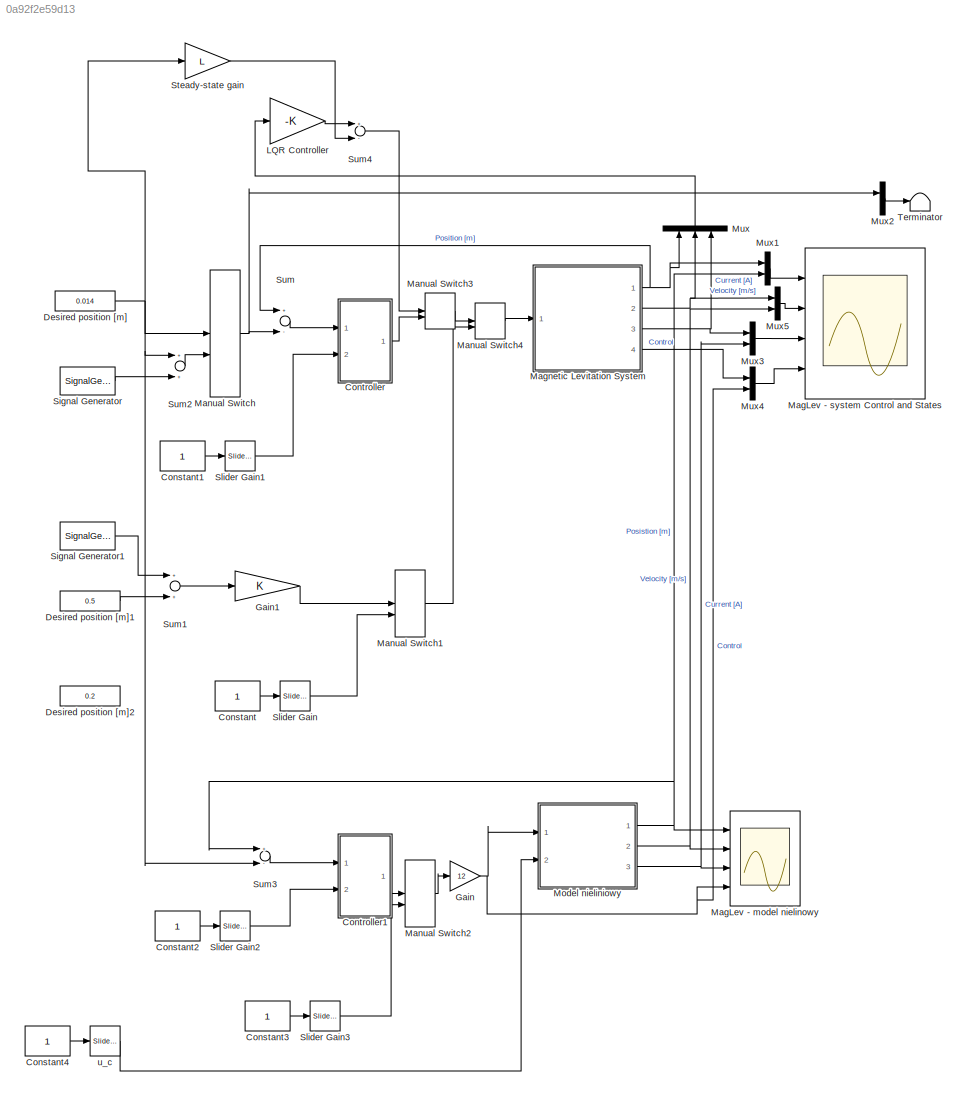
MODEL slx_0a92f2e59d13
KIND model
CONFIG AbsTol = 1e-6
CONFIG FixedStep = 0.001
CONFIG MaxStep = auto
CONFIG MinStep = auto
CONFIG PostLoadFcn = load ML_Sensor
CONFIG RelTol = 1e-3
CONFIG SampleTimeConstraint = Unconstrained
CONFIG Solver = ode5
CONFIG SolverMode = SingleTasking
CONFIG SolverName = ode5
CONFIG StartTime = 0.0
CONFIG StopTime = 1000
BLOCK [Constant] Constant
BLOCK [Constant] Constant1
BLOCK [Constant] Constant2
BLOCK [Constant] Constant3
BLOCK [Constant] Constant4
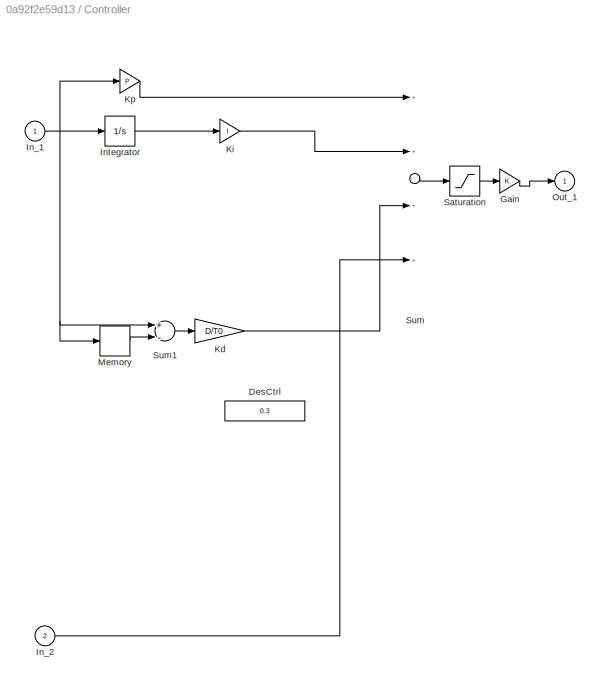
BLOCK [SubSystem] Controller
  Ports = [2, 1]
  RequestExecContextInheritance = off
BLOCK [Constant] Controller/DesCtrl
  Value = 0.3
BLOCK [Gain] Controller/Gain
BLOCK [Inport] Controller/In_1
  IconDisplay = Port number
BLOCK [Inport] Controller/In_2
  IconDisplay = Port number
  Port = 2
BLOCK [Integrator] Controller/Integrator
  InitialCondition = 0*4e-5
  LimitOutput = on
  LowerSaturationLimit = -1
  Ports = [1, 1]
  UpperSaturationLimit = 1
BLOCK [Gain] Controller/Kd
  Gain = D/T0
BLOCK [Gain] Controller/Ki
  Gain = I
BLOCK [Gain] Controller/Kp
  Gain = P
BLOCK [Memory] Controller/Memory
BLOCK [Outport] Controller/Out_1
  IconDisplay = Port number
  InitialOutput = 0
BLOCK [Saturate] Controller/Saturation
  InputPortMap = u0
  LowerLimit = 0
  Ports = [1, 1]
  UpperLimit = 1
BLOCK [Sum] Controller/Sum
  Inputs = ++++
  Ports = [4, 1]
BLOCK [Sum] Controller/Sum1
  Inputs = +-
  Ports = [2, 1]
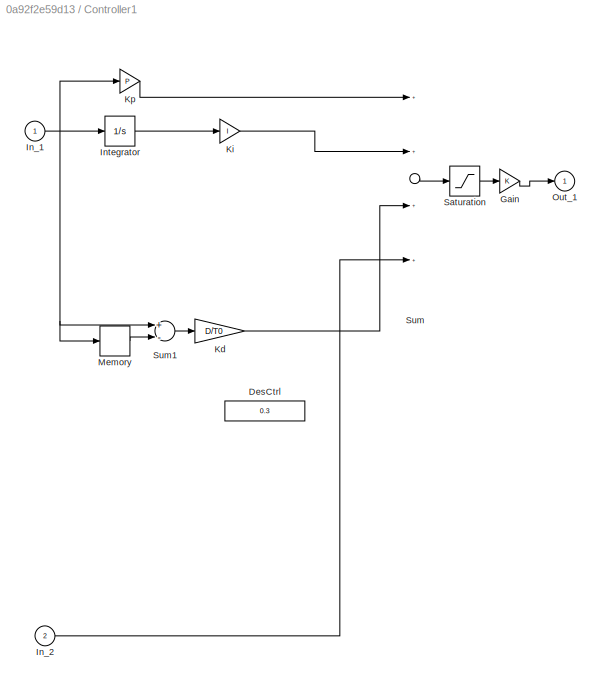
BLOCK [SubSystem] Controller1
  Ports = [2, 1]
  RequestExecContextInheritance = off
BLOCK [Constant] Controller1/DesCtrl
  Value = 0.3
BLOCK [Gain] Controller1/Gain
BLOCK [Inport] Controller1/In_1
  IconDisplay = Port number
BLOCK [Inport] Controller1/In_2
  IconDisplay = Port number
  Port = 2
BLOCK [Integrator] Controller1/Integrator
  InitialCondition = 0*4e-5
  LimitOutput = on
  LowerSaturationLimit = -1
  Ports = [1, 1]
  UpperSaturationLimit = 1
BLOCK [Gain] Controller1/Kd
  Gain = D/T0
BLOCK [Gain] Controller1/Ki
  Gain = I
BLOCK [Gain] Controller1/Kp
  Gain = P
BLOCK [Memory] Controller1/Memory
BLOCK [Outport] Controller1/Out_1
  IconDisplay = Port number
  InitialOutput = 0
BLOCK [Saturate] Controller1/Saturation
  InputPortMap = u0
  LowerLimit = 0
  Ports = [1, 1]
  UpperLimit = 1
BLOCK [Sum] Controller1/Sum
  Inputs = ++++
  Ports = [4, 1]
BLOCK [Sum] Controller1/Sum1
  Inputs = +-
  Ports = [2, 1]
BLOCK [Constant] Desired position [m]
  Value = 0.014
BLOCK [Constant] Desired position [m]1
  Value = 0.5
BLOCK [Constant] Desired position [m]2
  Value = 0.2
BLOCK [Gain] Gain
  Gain = 12
  OutDataTypeStr = Inherit: Inherit via internal rule
  ParamDataTypeStr = Inherit: Inherit via internal rule
  SaturateOnIntegerOverflow = off
BLOCK [Gain] Gain1
  OutDataTypeStr = Inherit: Inherit via internal rule
  ParamDataTypeStr = Inherit: Inherit via internal rule
  SaturateOnIntegerOverflow = off
BLOCK [Gain] LQR Controller
  Gain = -K
  Multiplication = Matrix(K*u)
  OutDataTypeStr = Inherit: Inherit via internal rule
  ParamDataTypeStr = Inherit: Inherit via internal rule
  SaturateOnIntegerOverflow = off
BLOCK [Scope] MagLev - model nielinowy
  DataFormat = StructureWithTime
  Floating = off
  LimitDataPoints = off
  MaxDataPoints = 10000
  NumInputPorts = 4
  Ports = [4]
  SampleTime = 0
  SaveName = ModelNieliniowy
  SaveToWorkspace = on
  TimeRange = 100
  YMax = 0.01475~0.009~0.08~0.25
  YMin = 0.01~-0.002~-0.005~0
BLOCK [Scope] MagLev - system Control and States
  DataFormat = StructureWithTime
  ExtModeLoggingTrig = on
  ExtModeUploadOption = log
  Floating = off
  LimitDataPoints = off
  MaxDataPoints = 10000
  NumInputPorts = 4
  Ports = [4]
  SampleTime = 0
  SaveName = ident
  SaveToWorkspace = on
  TimeRange = 20
  YMax = 2000~1000~3.5~12
  YMin = 0~-100~0.25~0
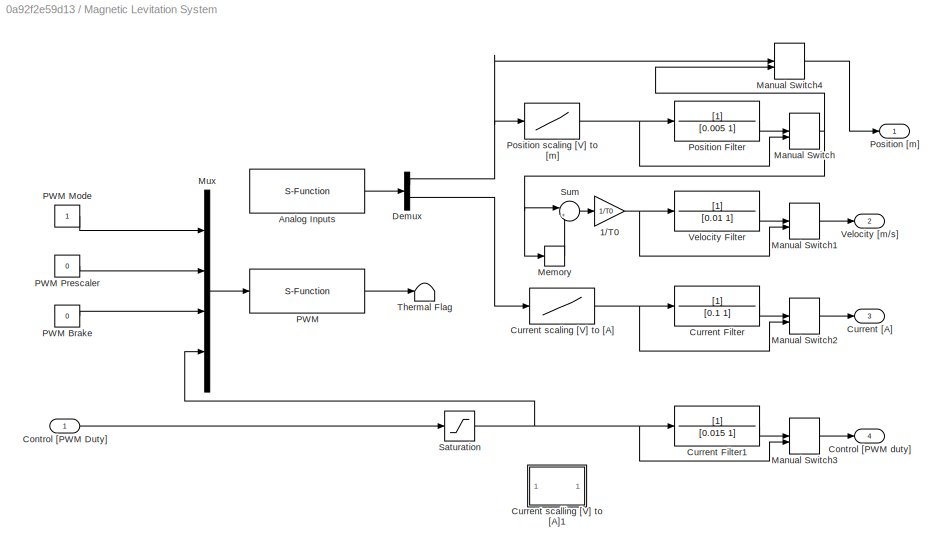
BLOCK [SubSystem] Magnetic Levitation System
  Ports = [1, 4]
  RequestExecContextInheritance = off
BLOCK [Gain] Magnetic Levitation System/1//T0
  Gain = 1/T0
BLOCK [S-Function] Magnetic Levitation System/Analog Inputs
  FunctionName = ML_AnalogInputs
  Parameters = BA, [4 2], [1 1], T0
  Ports = [0, 1]
BLOCK [Inport] Magnetic Levitation System/Control [PWM Duty]
  IconDisplay = Port number
BLOCK [Outport] Magnetic Levitation System/Control [PWM duty]
  IconDisplay = Port number
  Port = 4
BLOCK [TransferFcn] Magnetic Levitation System/Current Filter
  Denominator = [0.1 1]
BLOCK [TransferFcn] Magnetic Levitation System/Current Filter1
  Denominator = [0.015 1]
BLOCK [Outport] Magnetic Levitation System/Current [A]
  IconDisplay = Port number
  Port = 3
BLOCK [Lookup] Magnetic Levitation System/Current scaling [V] to [A] 
  InputValues = SensorData.Current_input
  Table = SensorData.Current_output
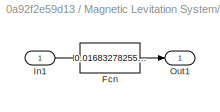
BLOCK [SubSystem] Magnetic Levitation System/Current scalling [V] to [A]1
  Commented = on
  Ports = [1, 1]
  RequestExecContextInheritance = off
BLOCK [Fcn] Magnetic Levitation System/Current scalling [V] to [A]1/Fcn
  Expr = 0.01683278255001*u(1)^2 +1.04509985660788*u(1) - 0.03168808638247
BLOCK [Inport] Magnetic Levitation System/Current scalling [V] to [A]1/In1
  IconDisplay = Port number
BLOCK [Outport] Magnetic Levitation System/Current scalling [V] to [A]1/Out1
  IconDisplay = Port number
BLOCK [Demux] Magnetic Levitation System/Demux
  Outputs = 2
  Ports = [1, 2]
BLOCK [ManualSwitch] Magnetic Levitation System/Manual Switch
  CurrentSetting = 0
BLOCK [ManualSwitch] Magnetic Levitation System/Manual Switch1
  CurrentSetting = 0
BLOCK [ManualSwitch] Magnetic Levitation System/Manual Switch2
  CurrentSetting = 0
BLOCK [ManualSwitch] Magnetic Levitation System/Manual Switch3
  CurrentSetting = 0
BLOCK [ManualSwitch] Magnetic Levitation System/Manual Switch4
  CurrentSetting = 0
BLOCK [Memory] Magnetic Levitation System/Memory
BLOCK [Mux] Magnetic Levitation System/Mux
  DisplayOption = bar
  Ports = [4, 1]
BLOCK [S-Function] Magnetic Levitation System/PWM
  FunctionName = ML_PWM
  Parameters = BA, T0
  Ports = [1, 1]
BLOCK [Constant] Magnetic Levitation System/PWM Brake
  Value = 0
BLOCK [Constant] Magnetic Levitation System/PWM Mode
BLOCK [Constant] Magnetic Levitation System/PWM Prescaler
  Value = 0
BLOCK [TransferFcn] Magnetic Levitation System/Position Filter
  Denominator = [0.005 1]
BLOCK [Outport] Magnetic Levitation System/Position [m]
  IconDisplay = Port number
BLOCK [Lookup] Magnetic Levitation System/Position scaling [V] to [m]
  InputValues = SensorData.Sensor_V(end:-1:1)
  Table = SensorData.Distance_m(end:-1:1)
BLOCK [Saturate] Magnetic Levitation System/Saturation
  InputPortMap = u0
  LowerLimit = 0
  Ports = [1, 1]
  UpperLimit = 1
BLOCK [Sum] Magnetic Levitation System/Sum
  IconShape = round
  Inputs = |+-
  Ports = [2, 1]
BLOCK [Terminator] Magnetic Levitation System/Thermal Flag
BLOCK [TransferFcn] Magnetic Levitation System/Velocity Filter
  Denominator = [0.01 1]
BLOCK [Outport] Magnetic Levitation System/Velocity [m//s]
  IconDisplay = Port number
  Port = 2
BLOCK [ManualSwitch] Manual Switch
BLOCK [ManualSwitch] Manual Switch1
  CurrentSetting = 0
BLOCK [ManualSwitch] Manual Switch2
BLOCK [ManualSwitch] Manual Switch3
  CurrentSetting = 0
BLOCK [ManualSwitch] Manual Switch4
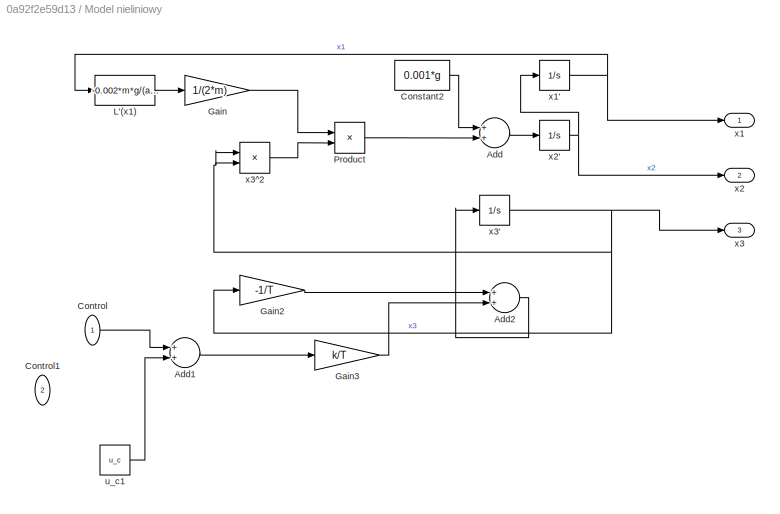
BLOCK [SubSystem] Model nieliniowy
  Ports = [2, 3]
  RequestExecContextInheritance = off
BLOCK [Sum] Model nieliniowy/Add
  InputSameDT = off
  OutDataTypeStr = Inherit: Inherit via internal rule
  Ports = [2, 1]
  SaturateOnIntegerOverflow = off
BLOCK [Sum] Model nieliniowy/Add1
  InputSameDT = off
  OutDataTypeStr = Inherit: Inherit via internal rule
  Ports = [2, 1]
  SaturateOnIntegerOverflow = off
BLOCK [Sum] Model nieliniowy/Add2
  InputSameDT = off
  OutDataTypeStr = Inherit: Inherit via internal rule
  Ports = [2, 1]
  SaturateOnIntegerOverflow = off
BLOCK [Constant] Model nieliniowy/Constant2
  Value = 0.001*g
BLOCK [Inport] Model nieliniowy/Control
  IconDisplay = Port number
BLOCK [Inport] Model nieliniowy/Control1
  IconDisplay = Port number
  Port = 2
BLOCK [Gain] Model nieliniowy/Gain
  Gain = 1/(2*m)
  OutDataTypeStr = Inherit: Inherit via internal rule
  ParamDataTypeStr = Inherit: Inherit via internal rule
  SaturateOnIntegerOverflow = off
BLOCK [Gain] Model nieliniowy/Gain2
  Gain = -1/T
  OutDataTypeStr = Inherit: Inherit via internal rule
  ParamDataTypeStr = Inherit: Inherit via internal rule
  SaturateOnIntegerOverflow = off
BLOCK [Gain] Model nieliniowy/Gain3
  Gain = k/T
  OutDataTypeStr = Inherit: Inherit via internal rule
  ParamDataTypeStr = Inherit: Inherit via internal rule
  SaturateOnIntegerOverflow = off
BLOCK [Fcn] Model nieliniowy/L'(x1)
  Expr = -0.002*m*g/(a*u+b)^2
BLOCK [Product] Model nieliniowy/Product
  InputSameDT = off
  OutDataTypeStr = Inherit: Inherit via internal rule
  Ports = [2, 1]
  RndMeth = Floor
  SaturateOnIntegerOverflow = off
BLOCK [Constant] Model nieliniowy/u_c1
  Value = u_c
BLOCK [Outport] Model nieliniowy/x1
  IconDisplay = Port number
BLOCK [Integrator] Model nieliniowy/x1'
  InitialCondition = x10
  LowerSaturationLimit = 0
  Ports = [1, 1]
  UpperSaturationLimit = 0.02
BLOCK [Outport] Model nieliniowy/x2
  IconDisplay = Port number
  Port = 2
BLOCK [Integrator] Model nieliniowy/x2'
  InitialCondition = x20
  Ports = [1, 1]
BLOCK [Outport] Model nieliniowy/x3
  IconDisplay = Port number
  Port = 3
BLOCK [Integrator] Model nieliniowy/x3'
  InitialCondition = x30
  Ports = [1, 1]
BLOCK [Product] Model nieliniowy/x3^2
  InputSameDT = off
  OutDataTypeStr = Inherit: Inherit via internal rule
  Ports = [2, 1]
  RndMeth = Floor
  SaturateOnIntegerOverflow = off
BLOCK [Mux] Mux
  DisplayOption = bar
  Inputs = 3
  Ports = [3, 1]
BLOCK [Mux] Mux1
  DisplayOption = bar
  Inputs = 2
  Ports = [2, 1]
BLOCK [Mux] Mux2
  DisplayOption = bar
  Inputs = 2
  Ports = [2, 1]
BLOCK [Mux] Mux3
  DisplayOption = bar
  Inputs = 2
  Ports = [2, 1]
BLOCK [Mux] Mux4
  DisplayOption = bar
  Inputs = 2
  Ports = [2, 1]
BLOCK [Mux] Mux5
  DisplayOption = bar
  Inputs = 2
  Ports = [2, 1]
BLOCK [SignalGenerator] Signal Generator
  Amplitude = 1e-3
  Frequency = 0.25
  Ports = [0, 1]
BLOCK [SignalGenerator] Signal Generator1
  Amplitude = 0.5
  Frequency = 200
  Ports = [0, 1]
  WaveForm = square
BLOCK [Reference] Slider Gain  REF=simulink/Math
Operations/Slider
Gain
  Ports = [1, 1]
  SourceBlock = simulink/Math\nOperations/Slider\nGain
  SourceType = Slider Gain
  gain = 0
  high = 1
  low = 0
BLOCK [Reference] Slider Gain1  REF=simulink/Math
Operations/Slider
Gain
  Ports = [1, 1]
  SourceBlock = simulink/Math\nOperations/Slider\nGain
  SourceType = Slider Gain
  gain = 0.52
  high = 1
  low = 0
BLOCK [Reference] Slider Gain2  REF=simulink/Math
Operations/Slider
Gain
  Ports = [1, 1]
  SourceBlock = simulink/Math\nOperations/Slider\nGain
  SourceType = Slider Gain
  gain = 0
  high = 1
  low = 0
BLOCK [Reference] Slider Gain3  REF=simulink/Math
Operations/Slider
Gain
  Ports = [1, 1]
  SourceBlock = simulink/Math\nOperations/Slider\nGain
  SourceType = Slider Gain
  gain = 0.41936
  high = 1
  low = 0
BLOCK [Gain] Steady-state gain
  Gain = L
  OutDataTypeStr = Inherit: Inherit via internal rule
  ParamDataTypeStr = Inherit: Inherit via internal rule
  SaturateOnIntegerOverflow = off
BLOCK [Sum] Sum
  Inputs = +-
  Ports = [2, 1]
BLOCK [Sum] Sum1
  Ports = [2, 1]
BLOCK [Sum] Sum2
  Ports = [2, 1]
BLOCK [Sum] Sum3
  Inputs = +-
  Ports = [2, 1]
BLOCK [Sum] Sum4
  Inputs = +-
  Ports = [2, 1]
BLOCK [Terminator] Terminator
BLOCK [Reference] u_c  REF=simulink/Math
Operations/Slider
Gain
  Ports = [1, 1]
  SourceBlock = simulink/Math\nOperations/Slider\nGain
  SourceType = Slider Gain
  gain = -0.096774
  high = 1
  low = -1
LINE Constant1:1 -> Slider Gain1:1
LINE Constant2:1 -> Slider Gain2:1
LINE Constant3:1 -> Slider Gain3:1
LINE Constant4:1 -> u_c:1
LINE Constant:1 -> Slider Gain:1
LINE Controller/Gain:1 -> Controller/Out_1:1
NET Controller/In_1:1 -> Controller/Integrator:1, Controller/Kp:1, Controller/Memory:1, Controller/Sum1:1
LINE Controller/In_2:1 -> Controller/Sum:4
LINE Controller/Integrator:1 -> Controller/Ki:1
LINE Controller/Kd:1 -> Controller/Sum:3
LINE Controller/Ki:1 -> Controller/Sum:2
LINE Controller/Kp:1 -> Controller/Sum:1
LINE Controller/Memory:1 -> Controller/Sum1:2
LINE Controller/Saturation:1 -> Controller/Gain:1
LINE Controller/Sum1:1 -> Controller/Kd:1
LINE Controller/Sum:1 -> Controller/Saturation:1
LINE Controller1/Gain:1 -> Controller1/Out_1:1
NET Controller1/In_1:1 -> Controller1/Integrator:1, Controller1/Kp:1, Controller1/Memory:1, Controller1/Sum1:1
LINE Controller1/In_2:1 -> Controller1/Sum:4
LINE Controller1/Integrator:1 -> Controller1/Ki:1
LINE Controller1/Kd:1 -> Controller1/Sum:3
LINE Controller1/Ki:1 -> Controller1/Sum:2
LINE Controller1/Kp:1 -> Controller1/Sum:1
LINE Controller1/Memory:1 -> Controller1/Sum1:2
LINE Controller1/Saturation:1 -> Controller1/Gain:1
LINE Controller1/Sum1:1 -> Controller1/Kd:1
LINE Controller1/Sum:1 -> Controller1/Saturation:1
LINE Controller1:1 -> Manual Switch2:1
LINE Controller:1 -> Manual Switch3:2
LINE Desired position [m]1:1 -> Sum1:2
NET Desired position [m]:1 -> Manual Switch:1, Steady-state gain:1, Sum2:1, Sum3:2
LINE Gain1:1 -> Manual Switch1:1
NET Gain:1 -> MagLev - model nielinowy:4, Model nieliniowy:1, Mux4:2
LINE LQR Controller:1 -> Sum4:1
NET Magnetic Levitation System/1//T0:1 -> Magnetic Levitation System/Manual Switch1:2, Magnetic Levitation System/Velocity Filter:1
LINE Magnetic Levitation System/Analog Inputs:1 -> Magnetic Levitation System/Demux:1
LINE Magnetic Levitation System/Control [PWM Duty]:1 -> Magnetic Levitation System/Saturation:1
LINE Magnetic Levitation System/Current Filter1:1 -> Magnetic Levitation System/Manual Switch3:1
LINE Magnetic Levitation System/Current Filter:1 -> Magnetic Levitation System/Manual Switch2:1
NET Magnetic Levitation System/Current scaling [V] to [A] :1 -> Magnetic Levitation System/Current Filter:1, Magnetic Levitation System/Manual Switch2:2
LINE Magnetic Levitation System/Current scalling [V] to [A]1/Fcn:1 -> Magnetic Levitation System/Current scalling [V] to [A]1/Out1:1
LINE Magnetic Levitation System/Current scalling [V] to [A]1/In1:1 -> Magnetic Levitation System/Current scalling [V] to [A]1/Fcn:1
NET Magnetic Levitation System/Demux:1 -> Magnetic Levitation System/Manual Switch4:1, Magnetic Levitation System/Position scaling [V] to [m]:1
LINE Magnetic Levitation System/Demux:2 -> Magnetic Levitation System/Current scaling [V] to [A] :1
LINE Magnetic Levitation System/Manual Switch1:1 -> Magnetic Levitation System/Velocity [m//s]:1
LINE Magnetic Levitation System/Manual Switch2:1 -> Magnetic Levitation System/Current [A]:1
LINE Magnetic Levitation System/Manual Switch3:1 -> Magnetic Levitation System/Control [PWM duty]:1
LINE Magnetic Levitation System/Manual Switch4:1 -> Magnetic Levitation System/Position [m]:1
NET Magnetic Levitation System/Manual Switch:1 -> Magnetic Levitation System/Manual Switch4:2, Magnetic Levitation System/Memory:1, Magnetic Levitation System/Sum:1
LINE Magnetic Levitation System/Memory:1 -> Magnetic Levitation System/Sum:2
LINE Magnetic Levitation System/Mux:1 -> Magnetic Levitation System/PWM:1
LINE Magnetic Levitation System/PWM Brake:1 -> Magnetic Levitation System/Mux:3
LINE Magnetic Levitation System/PWM Mode:1 -> Magnetic Levitation System/Mux:1
LINE Magnetic Levitation System/PWM Prescaler:1 -> Magnetic Levitation System/Mux:2
LINE Magnetic Levitation System/PWM:1 -> Magnetic Levitation System/Thermal Flag:1
LINE Magnetic Levitation System/Position Filter:1 -> Magnetic Levitation System/Manual Switch:1
NET Magnetic Levitation System/Position scaling [V] to [m]:1 -> Magnetic Levitation System/Manual Switch:2, Magnetic Levitation System/Position Filter:1
NET Magnetic Levitation System/Saturation:1 -> Magnetic Levitation System/Current Filter1:1, Magnetic Levitation System/Manual Switch3:2, Magnetic Levitation System/Mux:4
LINE Magnetic Levitation System/Sum:1 -> Magnetic Levitation System/1//T0:1
LINE Magnetic Levitation System/Velocity Filter:1 -> Magnetic Levitation System/Manual Switch1:1
NET Magnetic Levitation System:1 -> Mux1:1, Mux:1, Sum:1
NET Magnetic Levitation System:2 -> Mux5:1, Mux:2
NET Magnetic Levitation System:3 -> Mux3:1, Mux:3
LINE Magnetic Levitation System:4 -> Mux4:1
LINE Manual Switch1:1 -> Manual Switch4:2
LINE Manual Switch2:1 -> Gain:1
LINE Manual Switch3:1 -> Manual Switch4:1
LINE Manual Switch4:1 -> Magnetic Levitation System:1
NET Manual Switch:1 -> Mux2:1, Sum:2
LINE Model nieliniowy/Add1:1 -> Model nieliniowy/Gain3:1
LINE Model nieliniowy/Add2:1 -> Model nieliniowy/x3':1
LINE Model nieliniowy/Add:1 -> Model nieliniowy/x2':1
LINE Model nieliniowy/Constant2:1 -> Model nieliniowy/Add:1
LINE Model nieliniowy/Control:1 -> Model nieliniowy/Add1:1
LINE Model nieliniowy/Gain2:1 -> Model nieliniowy/Add2:1
LINE Model nieliniowy/Gain3:1 -> Model nieliniowy/Add2:2
LINE Model nieliniowy/Gain:1 -> Model nieliniowy/Product:1
LINE Model nieliniowy/L'(x1):1 -> Model nieliniowy/Gain:1
LINE Model nieliniowy/Product:1 -> Model nieliniowy/Add:2
LINE Model nieliniowy/u_c1:1 -> Model nieliniowy/Add1:2
NET Model nieliniowy/x1':1 -> Model nieliniowy/L'(x1):1, Model nieliniowy/x1:1
NET Model nieliniowy/x2':1 -> Model nieliniowy/x1':1, Model nieliniowy/x2:1
NET Model nieliniowy/x3':1 -> Model nieliniowy/Gain2:1, Model nieliniowy/x3:1, Model nieliniowy/x3^2:1, Model nieliniowy/x3^2:2
LINE Model nieliniowy/x3^2:1 -> Model nieliniowy/Product:2
NET Model nieliniowy:1 -> MagLev - model nielinowy:1, Mux1:2, Sum3:1
NET Model nieliniowy:2 -> MagLev - model nielinowy:2, Mux5:2
NET Model nieliniowy:3 -> MagLev - model nielinowy:3, Mux3:2
LINE Mux1:1 -> MagLev - system Control and States:1
LINE Mux2:1 -> Terminator:1
LINE Mux3:1 -> MagLev - system Control and States:3
LINE Mux4:1 -> MagLev - system Control and States:4
LINE Mux5:1 -> MagLev - system Control and States:2
LINE Mux:1 -> LQR Controller:1
LINE Signal Generator1:1 -> Sum1:1
LINE Signal Generator:1 -> Sum2:2
LINE Slider Gain1:1 -> Controller:2
LINE Slider Gain2:1 -> Controller1:2
LINE Slider Gain3:1 -> Manual Switch2:2
LINE Slider Gain:1 -> Manual Switch1:2
LINE Steady-state gain:1 -> Sum4:2
LINE Sum1:1 -> Gain1:1
LINE Sum2:1 -> Manual Switch:2
LINE Sum3:1 -> Controller1:1
LINE Sum4:1 -> Manual Switch3:1
LINE Sum:1 -> Controller:1
LINE u_c:1 -> Model nieliniowy:2
note: NET lines group one-source signal fan-out (src -> all destinations, sorted); 1:1 wires keep LINE
